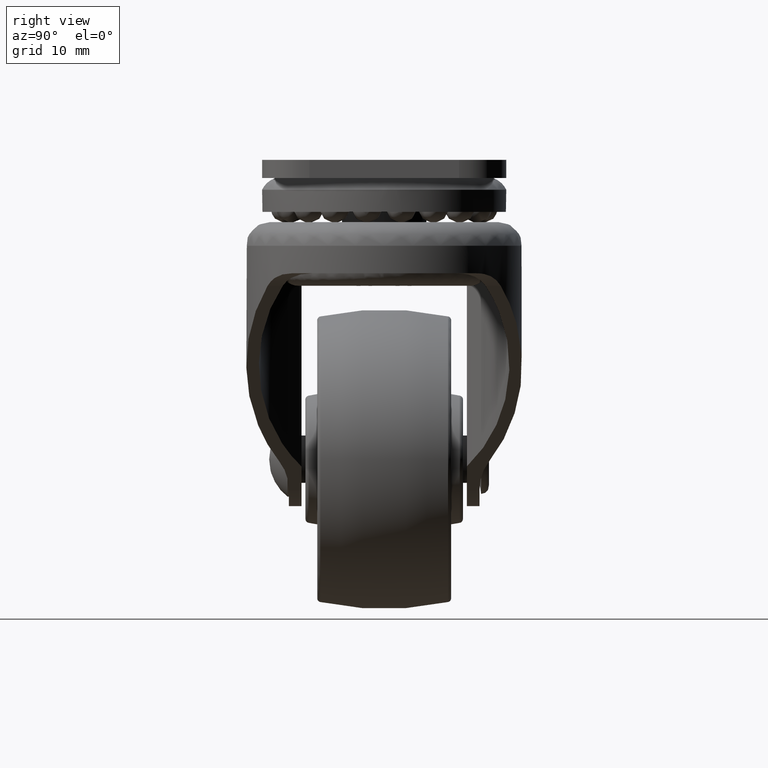
[diagram: clean part render]
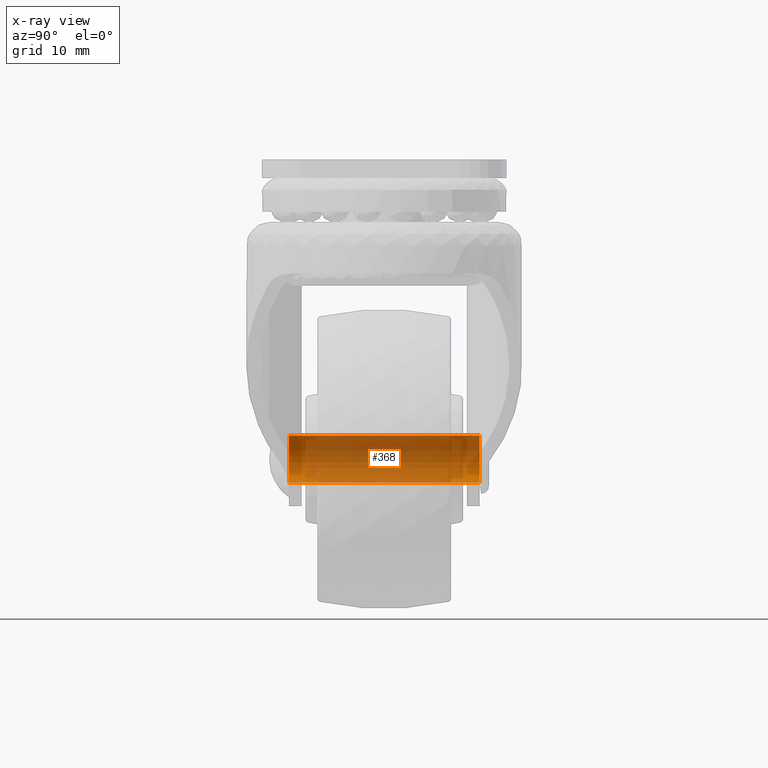
[diagram: x-ray — body ghosted, one internal face saturated and labeled with its STEP entity id]
A machine part, right view, then the same camera in x-ray: the body is ghosted and one INTERNAL B-rep face — a face not visible from any outside direction — is saturated and labeled: STEP entity #368.
In plain terms, the highlighted cylindrical surface (edge-blend (fillet) strip) has radius 3 mm, axis along (0, -1, 0).
Its self-contained STEP definition (entity closure, byte-faithful):
#368=ADVANCED_FACE('',(#1926),#1925,.T.);
#1925=CYLINDRICAL_SURFACE('',#4462,3.00000000000E+00);
#1926=FACE_OUTER_BOUND('',#4463,.T.);
#4459=CARTESIAN_POINT('',(1.32999979258E+01,0.00000000000E+00,0.00000000000E+00));
#4460=DIRECTION('',(1.00000000000E+00,-0.00000000000E+00,0.00000000000E+00));
#4461=DIRECTION('',(-0.00000000000E+00,-1.22464679915E-16,1.00000000000E+00));
#4462=AXIS2_PLACEMENT_3D('',#4459,#4460,#4461);
#4463=EDGE_LOOP('',(#6066,#6067,#6068,#6069));
#6066=ORIENTED_EDGE('',*,*,#6668,.T.);
#6067=ORIENTED_EDGE('',*,*,#6673,.F.);
#6068=ORIENTED_EDGE('',*,*,#6674,.F.);
#6069=ORIENTED_EDGE('',*,*,#6675,.T.);
#6668=EDGE_CURVE('',#9485,#9486,#9487,.T.);
#6673=EDGE_CURVE('',#9520,#9486,#9521,.T.);
#6674=EDGE_CURVE('',#9527,#9520,#9528,.T.);
#6675=EDGE_CURVE('',#9527,#9485,#9534,.T.);
#9485=VERTEX_POINT('',#13604);
#9486=VERTEX_POINT('',#13605);
#9487=CIRCLE('',#13609,3.00000000000E+00);
#9520=VERTEX_POINT('',#13629);
#9521=(BOUNDED_CURVE() B_SPLINE_CURVE(1,(#13630,#13631),.UNSPECIFIED.,.F.,.F.) B_SPLINE_CURVE_WITH_KNOTS((2,2),(8.33333328360E-02,9.16666665505E-01),.UNSPECIFIED.) CURVE() GEOMETRIC_REPRESENTATION_ITEM() RATIONAL_B_SPLINE_CURVE((1.00000000000E+00,1.00000000000E+00)) REPRESENTATION_ITEM('') );
#9527=VERTEX_POINT('',#13632);
#9528=CIRCLE('',#13636,3.00000000000E+00);
#9534=(BOUNDED_CURVE() B_SPLINE_CURVE(1,(#13637,#13638),.UNSPECIFIED.,.F.,.F.) B_SPLINE_CURVE_WITH_KNOTS((2,2),(8.33333333333E-02,9.16666666667E-01),.UNSPECIFIED.) CURVE() GEOMETRIC_REPRESENTATION_ITEM() RATIONAL_B_SPLINE_CURVE((7.50000000000E-01,7.50000000000E-01)) REPRESENTATION_ITEM('') );
#13604=CARTESIAN_POINT('',(2.53999960000E+01,-5.92118946467E-16,-3.00000000000E+00));
#13605=CARTESIAN_POINT('',(2.53999960000E+01,7.67073037033E-17,3.00000000000E+00));
#13606=CARTESIAN_POINT('',(2.53999960000E+01,0.00000000000E+00,0.00000000000E+00));
#13607=DIRECTION('',(-1.00000000000E+00,-0.00000000000E+00,0.00000000000E+00));
#13608=DIRECTION('',(-0.00000000000E+00,1.48029736617E-16,1.00000000000E+00));
#13609=AXIS2_PLACEMENT_3D('',#13606,#13607,#13608);
#13629=CARTESIAN_POINT('',(1.20000000000E+00,1.48029736617E-16,3.00000000000E+00));
#13630=CARTESIAN_POINT('',(1.19999998556E+00,-3.67394039745E-16,3.00000000000E+00));
#13631=CARTESIAN_POINT('',(2.53999959663E+01,-3.67394039745E-16,3.00000000000E+00));
#13632=CARTESIAN_POINT('',(1.20000000000E+00,5.86734075677E-16,-3.00000000000E+00));
#13633=CARTESIAN_POINT('',(1.20000000000E+00,0.00000000000E+00,0.00000000000E+00));
#13634=DIRECTION('',(-1.00000000000E+00,0.00000000000E+00,0.00000000000E+00));
#13635=DIRECTION('',(-0.00000000000E+00,7.31173898433E-17,-1.00000000000E+00));
#13636=AXIS2_PLACEMENT_3D('',#13633,#13634,#13635);
#13637=CARTESIAN_POINT('',(1.20000000000E+00,4.44089209850E-16,-3.00000000000E+00));
#13638=CARTESIAN_POINT('',(2.53999960000E+01,4.44089209850E-16,-3.00000000000E+00));